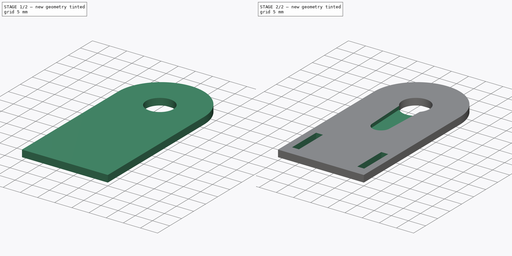
[diagram: build sequence overview — one tinted view per stage of 2, left to right]
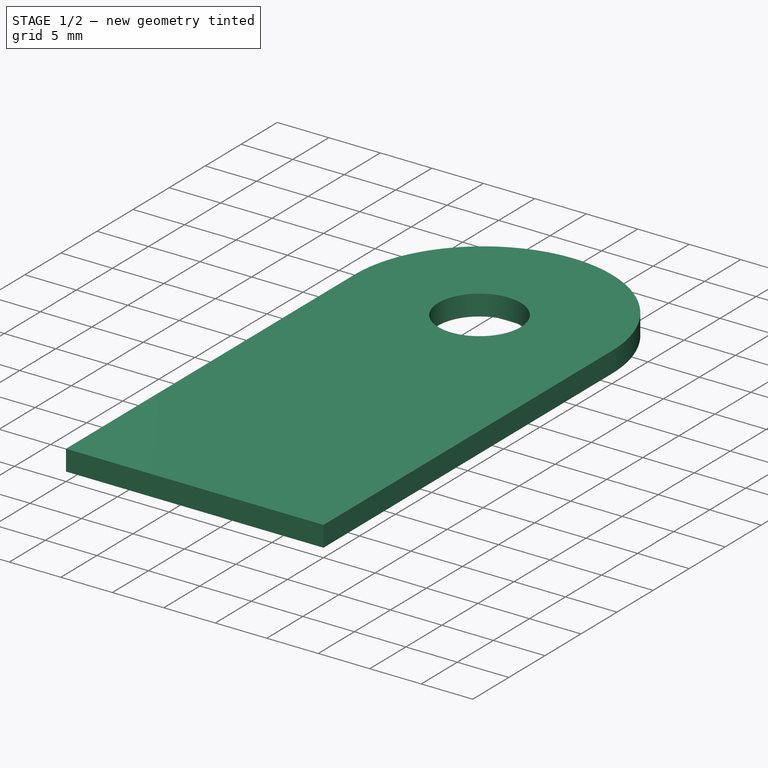
[diagram: stage 1 of 2 — iso view after this stage's code; geometry added in this stage tinted green]
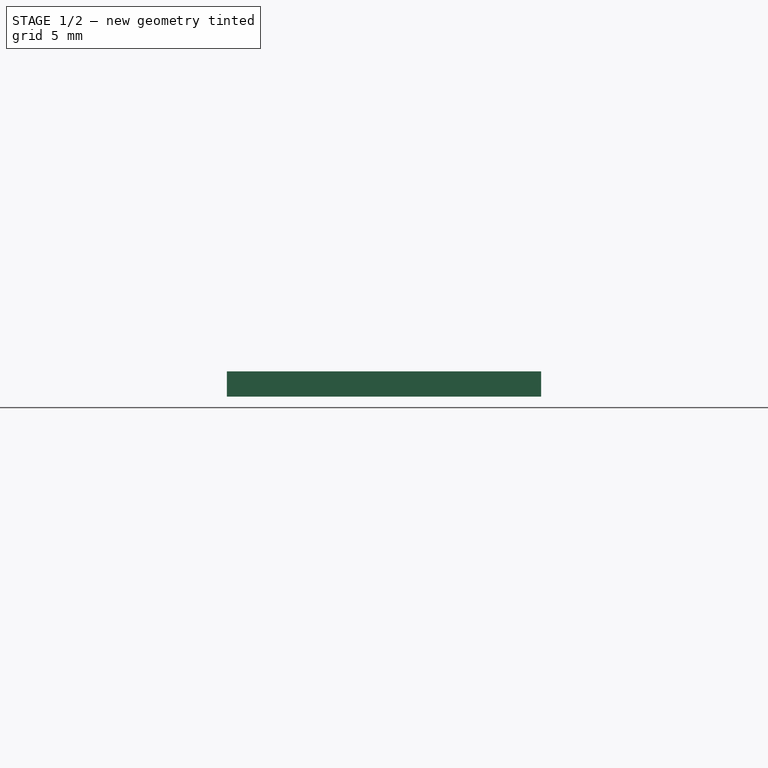
[diagram: stage 1 of 2 — front view after this stage's code; geometry added in this stage tinted green]
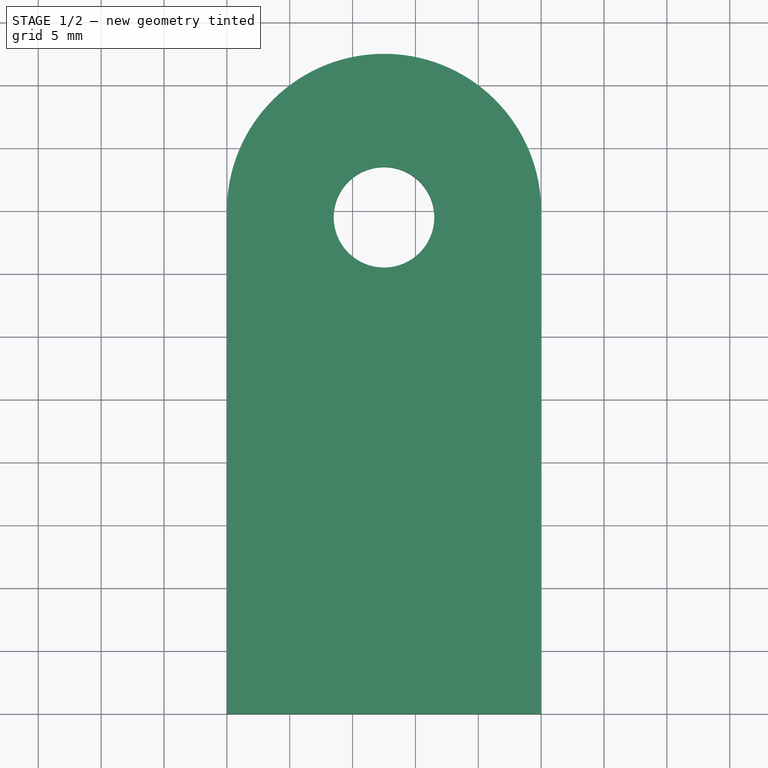
[diagram: stage 1 of 2 — top view after this stage's code; geometry added in this stage tinted green]
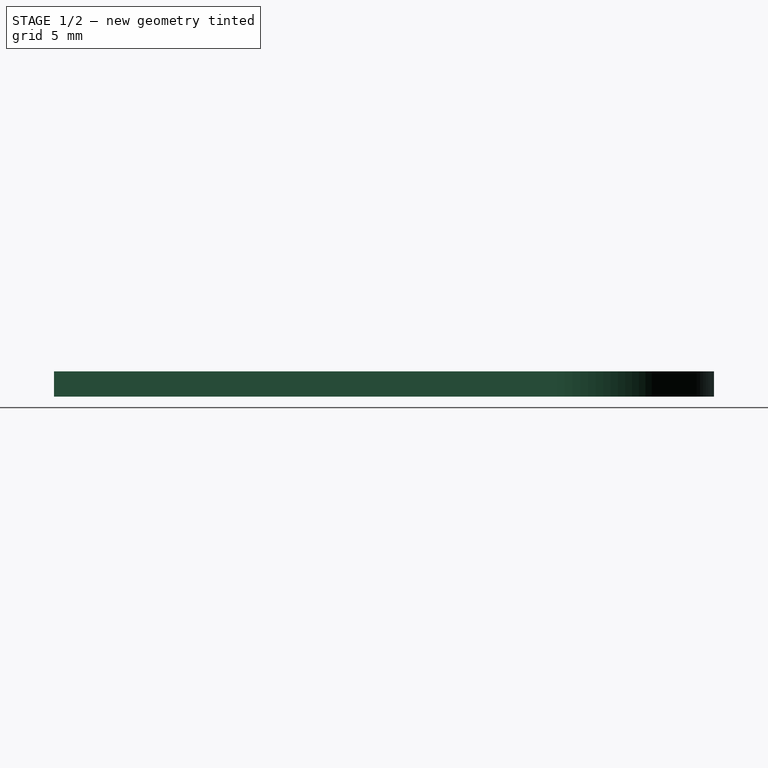
[diagram: stage 1 of 2 — right view after this stage's code; geometry added in this stage tinted green]
FCSTD DOCUMENT  (FreeCAD 0.18R16131 (Git))
Label: hip_haut_11
License: All rights reserved
LicenseURL: http://en.wikipedia.org/wiki/All_rights_reserved
objects: Sketcher::SketchObject×4, PartDesign::Pocket×3, PartDesign::Pad×1, PartDesign::Body×1
note: 13 computed .brp shape members not serialized (recipe doc carries the construction recipe); baked Part::Feature solids carry a one-line shape summary decoded from their .brp

FEATURE [Sketcher::SketchObject] Sketch003  label="encoches"
  MapMode = 5
  Support = -> [XY_Plane]
  sketch-geometry (8):
    g0: LineSegment StartX=2 StartY=13 StartZ=0 EndX=4 EndY=13 EndZ=0
    g1: LineSegment StartX=4 StartY=13 StartZ=0 EndX=4 EndY=3 EndZ=0
    g2: LineSegment StartX=4 StartY=3 StartZ=0 EndX=2 EndY=3 EndZ=0
    g3: LineSegment StartX=2 StartY=3 StartZ=0 EndX=2 EndY=13 EndZ=0
    g4: LineSegment StartX=21 StartY=13 StartZ=0 EndX=23 EndY=13 EndZ=0
    g5: LineSegment StartX=23 StartY=13 StartZ=0 EndX=23 EndY=3 EndZ=0
    g6: LineSegment StartX=23 StartY=3 StartZ=0 EndX=21 EndY=3 EndZ=0
    g7: LineSegment StartX=21 StartY=3 StartZ=0 EndX=21 EndY=13 EndZ=0
  constraints (24):
    c: Coincident(g0,g1)
    c: Coincident(g1,g2)
    c: Coincident(g2,g3)
    c: Coincident(g3,g0)
    c: Horizontal(g0)
    c: Horizontal(g2)
    c: Vertical(g1)
    c: Vertical(g3)
    c: DistanceX(g0,g0) = 2
    c: DistanceY(g1,g1) = 10
    c: DistanceX(g-1,g2) = 2
    c: DistanceY(g-1,g2) = 3
    c: Coincident(g4,g5)
    c: Coincident(g5,g6)
    c: Coincident(g6,g7)
    c: Coincident(g7,g4)
    c: Horizontal(g4)
    c: Horizontal(g6)
    c: Vertical(g5)
    c: Vertical(g7)
    c: Equal(g0,g4) = 2
    c: Equal(g1,g5) = 10
    c: DistanceX(g1,g6) = 17
    c: Horizontal(g6,g2)
FEATURE [Sketcher::SketchObject] Sketch002  label="Trou_servo"
  MapMode = 5
  Support = -> [XY_Plane]
  sketch-geometry (1):
    g0: Circle CenterX=12.5 CenterY=39.5 CenterZ=0 NormalX=0 NormalY=0 NormalZ=1 AngleXU=0 Radius=4
  constraints (3):
    c: Radius(g0) = 4
    c: DistanceX(g-1,g0) = 12.5
    c: DistanceY(g-1,g0) = 39.5
FEATURE [Sketcher::SketchObject] CopySketch
  MapMode = 5
  Support = -> [XY_Plane]
  sketch-geometry (4):
    g0: ArcOfCircle CenterX=12.5 CenterY=40 CenterZ=0 NormalX=0 NormalY=0 NormalZ=1 AngleXU=0 Radius=12.5 StartAngle=0 EndAngle=3.14159
    g1: LineSegment StartX=25 StartY=0 StartZ=0 EndX=25 EndY=40 EndZ=0
    g2: LineSegment StartX=0 StartY=0 StartZ=0 EndX=0 EndY=40 EndZ=0
    g3: LineSegment StartX=0 StartY=0 StartZ=0 EndX=25 EndY=0 EndZ=0
  constraints (10):
    c: Tangent(g1,g0) = -1.5708
    c: Tangent(g2,g0) = 1.5708
    c: Vertical(g1)
    c: Radius(g0) = 12.5
    c: DistanceY(g2,g2) = 40
    c: Vertical(g2)
    c: Horizontal(g3)
    c: Coincident(g2,g3)
    c: Coincident(g-1,g2)
    c: Coincident(g3,g1)
FEATURE [PartDesign::Pad] Pad
  Length = 2
  Length2 = 100
  Midplane = true
  Profile = -> CopySketch
  Type = 0
FEATURE [PartDesign::Pocket] Pocket
  BaseFeature = -> Pad
  Length = 5
  Length2 = 100
  Midplane = true
  Profile = -> Sketch002
  Type = 1
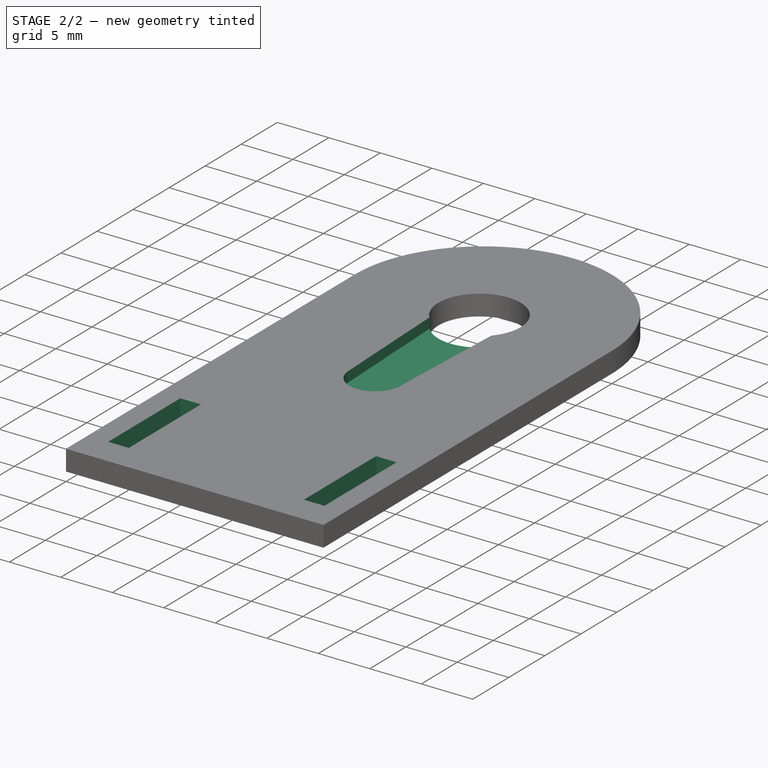
[diagram: stage 2 of 2 — iso view after this stage's code; geometry added in this stage tinted green]
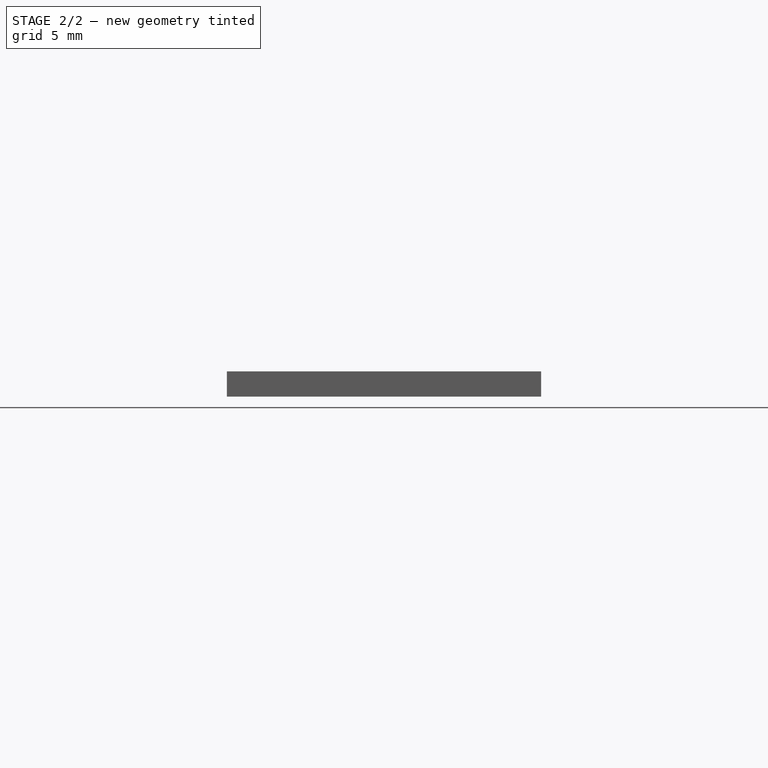
[diagram: stage 2 of 2 — front view after this stage's code; geometry added in this stage tinted green]
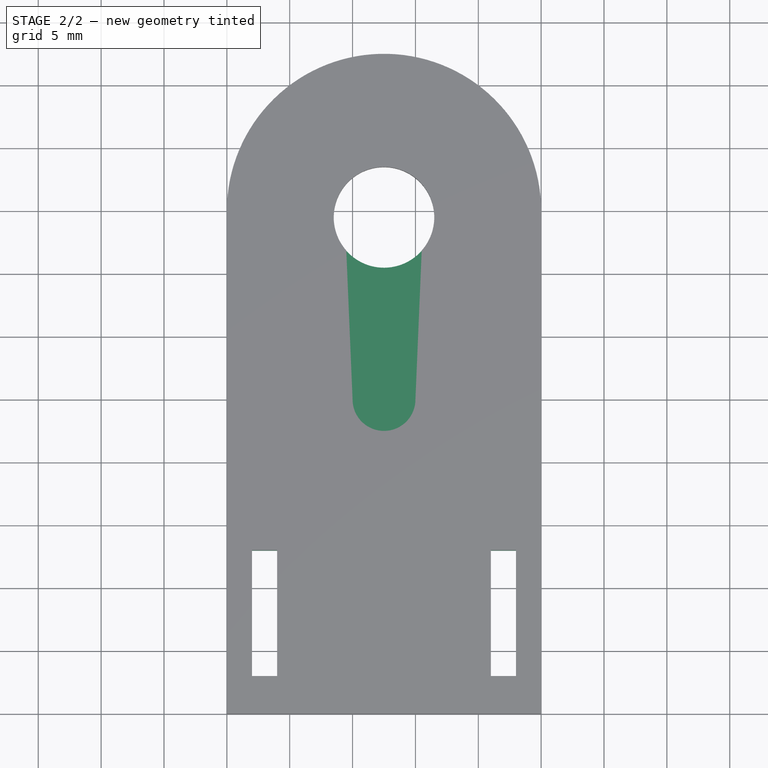
[diagram: stage 2 of 2 — top view after this stage's code; geometry added in this stage tinted green]
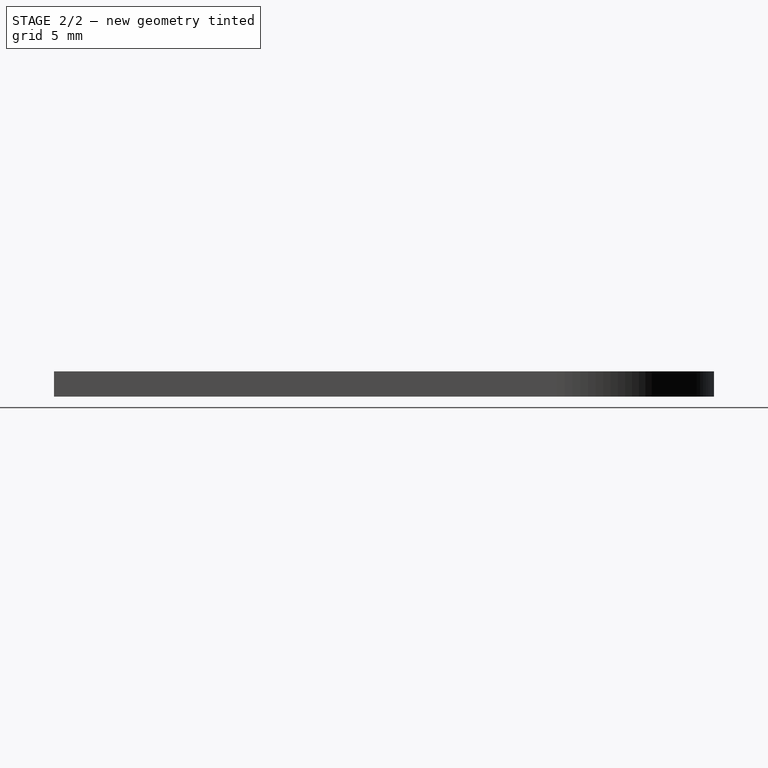
[diagram: stage 2 of 2 — right view after this stage's code; geometry added in this stage tinted green]
FEATURE [PartDesign::Pocket] Pocket002
  BaseFeature = -> Pocket
  Length = 5
  Length2 = 100
  Midplane = true
  Profile = -> Sketch003
  Type = 1
FEATURE [Sketcher::SketchObject] Sketch
  MapMode = 5
  Support = -> [XY_Plane]
  sketch-geometry (4):
    g0: ArcOfCircle CenterX=12.5 CenterY=39.5 CenterZ=0 NormalX=0 NormalY=0 NormalZ=1 AngleXU=0 Radius=4 StartAngle=5.56045 EndAngle=10.1475
    g1: LineSegment StartX=9.5 StartY=36.8542 StartZ=0 EndX=10 EndY=25 EndZ=0
    g2: LineSegment StartX=15.5 StartY=36.8542 StartZ=0 EndX=15 EndY=25 EndZ=0
    g3: ArcOfCircle CenterX=12.5 CenterY=25 CenterZ=0 NormalX=0 NormalY=0 NormalZ=1 AngleXU=0 Radius=2.5 StartAngle=3.14159 EndAngle=6.28319
  constraints (14):
    c: Horizontal(g0,g0)
    c: Radius(g0) = 4
    c: DistanceY(g-1,g0) = 39.5
    c: DistanceX(g-1,g0) = 12.5
    c: DistanceX(g0,g0) = 6
    c: Coincident(g1,g0)
    c: Coincident(g2,g0)
    c: Vertical(g3,g0)
    c: DistanceY(g3,g0) = 14.5
    c: Radius(g3) = 2.5
    c: Horizontal(g3,g3)
    c: DistanceX(g3,g3) = 5
    c: Coincident(g2,g3)
    c: Coincident(g1,g3)
FEATURE [PartDesign::Pocket] Pocket003
  BaseFeature = -> Pocket002
  Length = 1
  Length2 = 100
  Profile = -> Sketch
  Reversed = true
  Type = 0
FEATURE [PartDesign::Body] Body
  Group = -> [Sketch002,CopySketch,Pad,Pocket,Sketch003,Pocket002,Sketch,Pocket003]
  Origin = -> Origin
  Tip = -> Pocket003
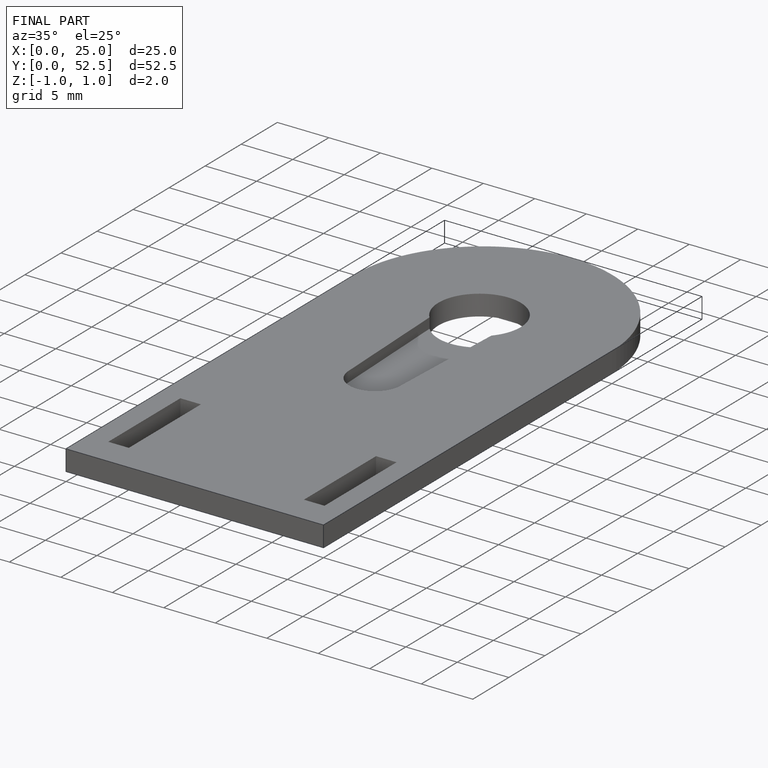
[diagram: finished part — iso view with bounding-box wireframe]
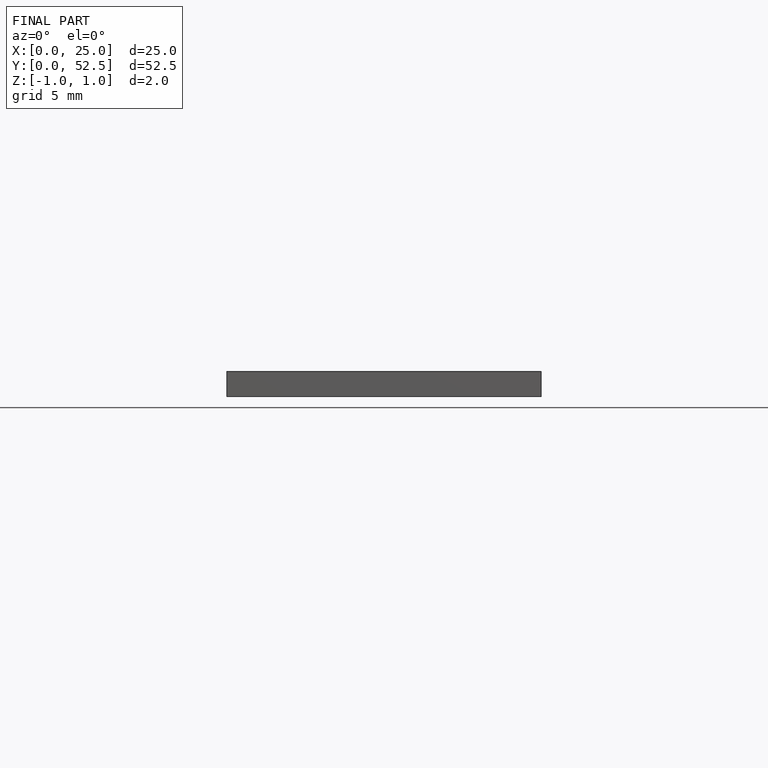
[diagram: finished part — front view with bounding-box wireframe]
